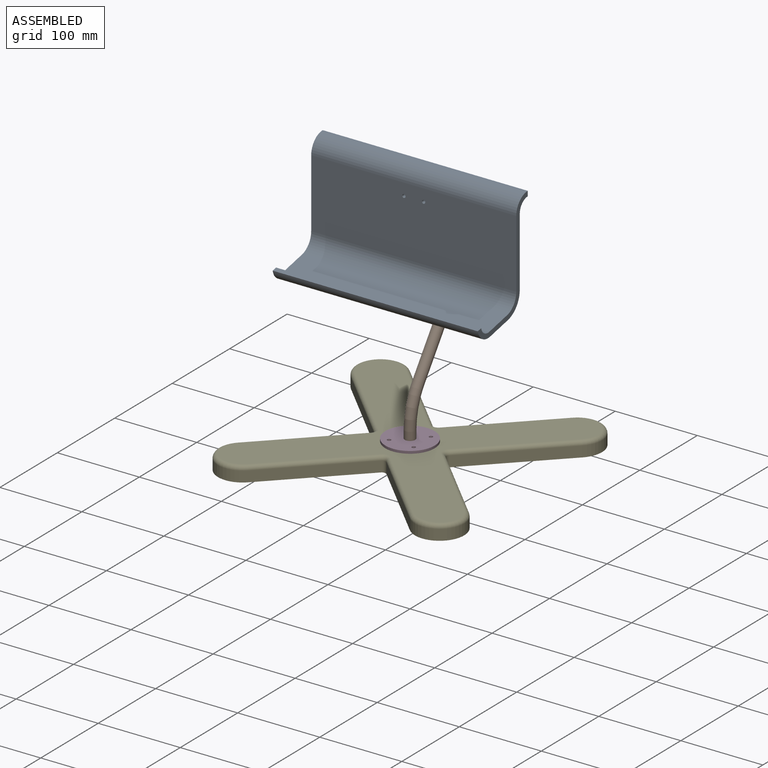
[diagram: assembled view]
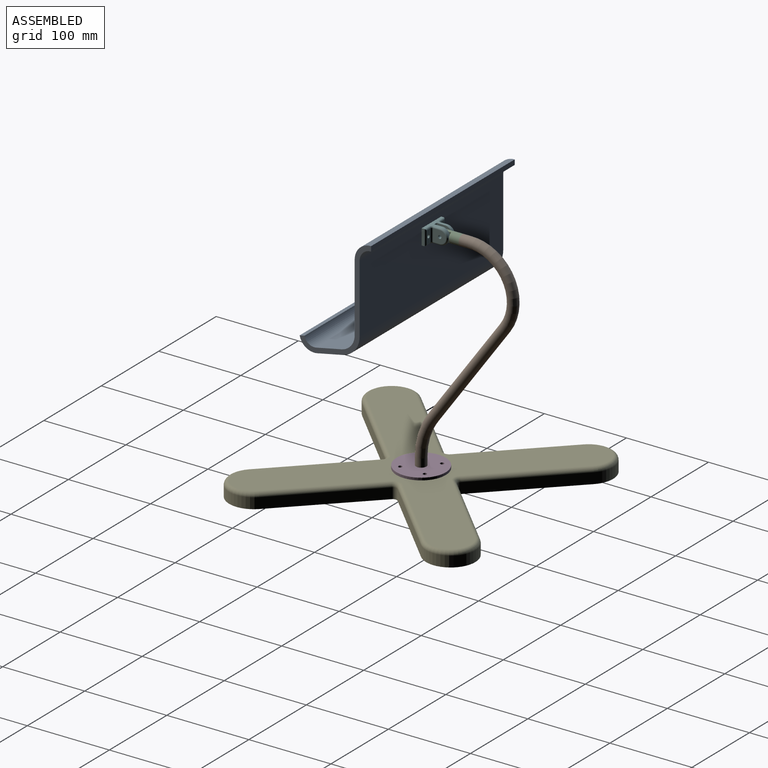
[diagram: assembled view, second angle]
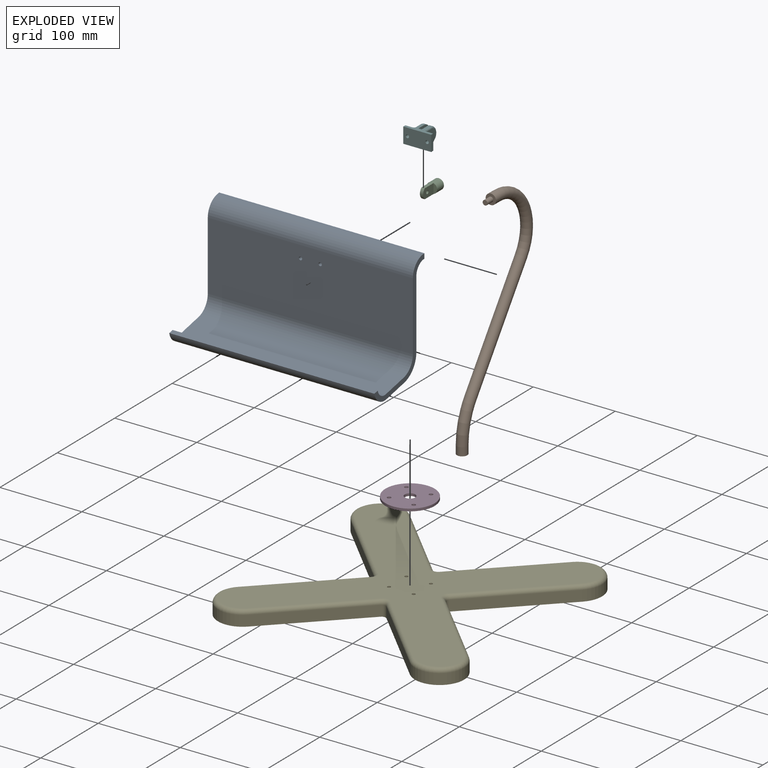
[diagram: exploded view]
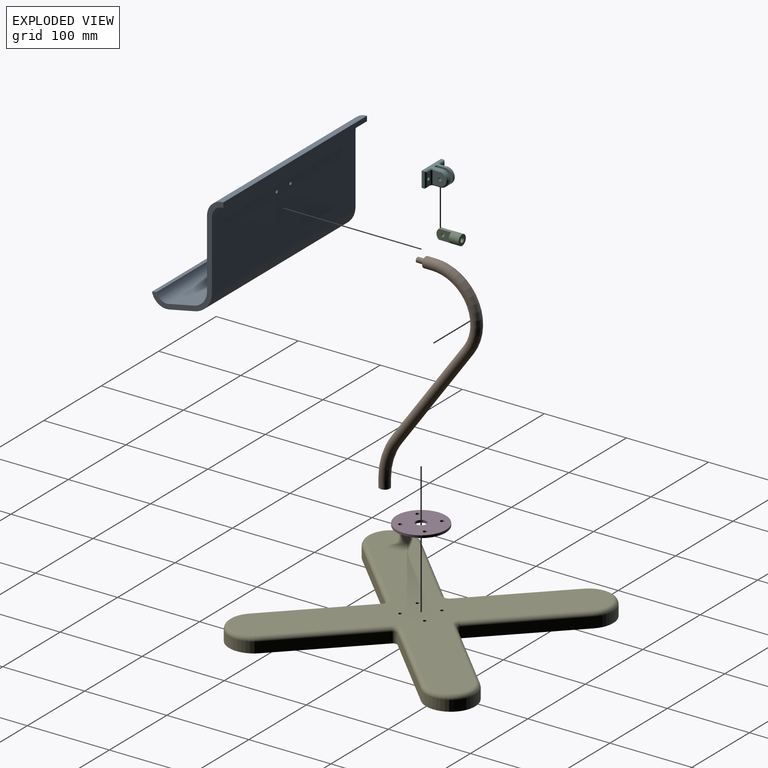
[diagram: exploded view, second angle]
ASSEMBLY  parts=6 mates=5
PART A: 16 faces, bbox 250x109.8x119.9 mm
  f0: plane 250x5.88mm, normal (0,0.98,-0.2), area 1500mm2, adj f1,f11,f12,f13
  f1: cylinder r=20mm len=250mm, axis (1,0,0), area 7854mm2, adj f0,f2,f12,f13
  f2: plane 250x81.98mm, normal (0,-0.98,0.2), area 20899.7mm2, adj f1,f3,f12,f13,f14,f15
  f3: cylinder r=20mm len=250mm, axis (1,0,0), area 6838.5mm2, adj f2,f4,f12,f13
  f4: plane 250x31.7mm, normal (0,0,1), area 7924.8mm2, adj f3,f5,f12,f13
  f5: cylinder r=12mm len=250mm, axis (1,0,0), area 4712.4mm2, adj f4,f6,f12,f13
  f6: plane 250x6mm, normal (0,0,1), area 1500mm2, adj f5,f7,f12,f13
  f7: cylinder r=18mm len=250mm, axis (1,0,0), area 7068.6mm2, adj f6,f8,f12,f13
  f8: plane 250x31.7mm, normal (0,0,-1), area 7924.8mm2, adj f7,f9,f12,f13
  f9: cylinder r=26mm len=250mm, axis (1,0,0), area 8890mm2, adj f8,f10,f12,f13
  f10: plane 250x81.98mm, normal (0,0.98,-0.2), area 20899.7mm2, adj f9,f11,f12,f13,f14,f15
  f11: cylinder r=14mm len=250mm, axis (1,0,0), area 5497.8mm2, adj f0,f10,f12,f13
  f12: plane 119.91x109.79mm, normal (-1,0,0), area 1182.7mm2, adj f0,f1,f2,f3,f4,f5,f6,f7
  f13: plane 119.91x109.79mm, normal (1,0,0), area 1182.7mm2, adj f0,f1,f2,f3,f4,f5,f6,f7
  f14: cylinder r=2mm len=6.68mm, axis (0,0.98,-0.2), area 75.4mm2, adj f2,f10
  f15: cylinder r=2mm len=6.68mm, axis (0,0.98,-0.2), area 75.4mm2, adj f2,f10
PART B: 9 faces, bbox 12.7x136.8x272.3 mm
  f0: cylinder r=6.35mm len=12.7mm, axis (0,-1,0), area 399mm2, adj f5,f7
  f1: plane 12.7x12.7mm, normal (0,0,-1), area 126.7mm2, adj f2
  f2: cylinder r=6.35mm len=12.7mm, axis (0,0,1), area 399mm2, adj f1,f3
  f3: torus R=80mm, axis (-1,0,0), area 1986.1mm2, adj f2,f4
  f4: cylinder r=6.35mm len=129.29mm, axis (0,0.58,0.81), area 5984.7mm2, adj f3,f5
  f5: torus R=52.21mm, axis (1,0,0), area 4567.9mm2, adj f0,f4
  f6: cylinder r=3mm len=10mm, axis (0,-1,0), area 188.5mm2, adj f7,f8
  f7: plane 12.7x12.7mm, normal (0,-1,0), area 98.4mm2, adj f0,f6
  f8: plane 6x6mm, normal (0,-1,0), area 28.3mm2, adj f6
PART C: 10 faces, bbox 12.7x12.7x30 mm
  f0: cylinder r=6.35mm len=26.96mm, axis (0,0,-1), area 598mm2, adj f1,f2,f3,f4,f8,f9
  f1: plane 12.7x12.7mm, normal (0,0,-1), area 98.4mm2, adj f0,f6
  f2: plane 18x12.05mm, normal (-1,0,0), area 193.4mm2, adj f0,f4,f5,f8
  f3: plane 18x12.05mm, normal (1,0,0), area 193.4mm2, adj f0,f4,f5,f9
  f4: cylinder r=7.5mm len=12.7mm, axis (1,0,0), area 59mm2, adj f0,f2,f3
  f5: cylinder r=2mm len=4mm, axis (1,0,0), area 50.3mm2, adj f2,f3
  f6: cylinder r=3mm len=10mm, axis (0,0,-1), area 188.5mm2, adj f1,f7
  f7: plane 6x6mm, normal (0,0,-1), area 28.3mm2, adj f6
  f8: plane 12.05x4.35mm, normal (0,0,1), area 38.4mm2, adj f0,f2
  f9: plane 12.05x4.35mm, normal (0,0,1), area 38.4mm2, adj f0,f3
PART D: 8 faces, bbox 60x60x3 mm
  f0: cylinder r=30mm len=60mm, axis (0,0,1), area 565.5mm2, adj f1,f2
  f1: plane 60x60mm, normal (0,0,-1), area 2637.1mm2, adj f0,f3,f4,f5,f6,f7
  f2: plane 60x60mm, normal (0,0,1), area 2637.1mm2, adj f0,f3,f4,f5,f6,f7
  f3: cylinder r=6.35mm len=12.7mm, axis (0,0,1), area 119.7mm2, adj f1,f2
  f4: cylinder r=2.25mm len=4.5mm, axis (0,0,1), area 42.4mm2, adj f1,f2
  f5: cylinder r=2.25mm len=4.5mm, axis (0,0,1), area 42.4mm2, adj f1,f2
  f6: cylinder r=2.25mm len=4.5mm, axis (0,0,1), area 42.4mm2, adj f1,f2
  f7: cylinder r=2.25mm len=4.5mm, axis (0,0,1), area 42.4mm2, adj f1,f2
PART E: 42 faces, bbox 304.9x304.9x18 mm
  f0: cylinder r=5mm len=13mm, axis (0,0,1), area 102.1mm2, adj f1,f15,f16,f19
  f1: plane 95.25x95.25mm, normal (-0.71,0.71,0), area 1751.2mm2, adj f0,f2,f16,f18
  f2: cylinder r=30mm len=51.21mm, axis (0,0,1), area 1225.2mm2, adj f1,f3,f16,f20
  f3: plane 95.25x95.25mm, normal (0.71,-0.71,0), area 1751.2mm2, adj f2,f4,f16,f22
  f4: cylinder r=5mm len=13mm, axis (0,0,1), area 102.1mm2, adj f3,f5,f16,f24
  f5: plane 95.25x95.25mm, normal (-0.71,-0.71,0), area 1751.2mm2, adj f4,f6,f16,f26
  f6: cylinder r=30mm len=51.21mm, axis (0,0,1), area 1225.2mm2, adj f5,f7,f16,f28
  f7: plane 95.25x95.25mm, normal (0.71,0.71,0), area 1751.2mm2, adj f6,f8,f16,f30
  f8: cylinder r=5mm len=13mm, axis (0,0,1), area 102.1mm2, adj f7,f9,f16,f32
  f9: plane 95.25x95.25mm, normal (0.71,-0.71,0), area 1751.2mm2, adj f8,f10,f16,f33
  f10: cylinder r=30mm len=51.21mm, axis (0,0,1), area 1225.2mm2, adj f9,f11,f16,f31
  f11: plane 95.25x95.25mm, normal (-0.71,0.71,0), area 1751.2mm2, adj f10,f12,f16,f29
  f12: cylinder r=5mm len=13mm, axis (0,0,1), area 102.1mm2, adj f11,f13,f16,f27
  f13: plane 95.25x95.25mm, normal (0.71,0.71,0), area 1751.2mm2, adj f12,f14,f16,f25
  f14: cylinder r=30mm len=51.21mm, axis (0,0,1), area 1225.2mm2, adj f13,f15,f16,f23
  f15: plane 95.25x95.25mm, normal (-0.71,-0.71,0), area 1751.2mm2, adj f0,f14,f16,f21
  f16: plane 300x300mm, normal (0,0,-1), area 42805.7mm2, adj f0,f1,f2,f3,f4,f5,f6,f7
  f17: plane 290x290mm, normal (0,0,1), area 35403.7mm2, adj f18,f19,f20,f21,f22,f23,f24,f25
  f18: cylinder r=5mm len=98.79mm, axis (-0.71,-0.71,0), area 1058mm2, adj f1,f17,f19,f20
  f19: torus R=10mm, axis (0,0,1), area 84.1mm2, adj f0,f17,f18,f21
  f20: torus R=25mm, axis (0,0,1), area 695.4mm2, adj f2,f17,f18,f22
  f21: cylinder r=5mm len=98.79mm, axis (0.71,-0.71,0), area 1058mm2, adj f15,f17,f19,f23
  f22: cylinder r=5mm len=98.79mm, axis (0.71,0.71,0), area 1058mm2, adj f3,f17,f20,f24
  f23: torus R=25mm, axis (0,0,1), area 695.4mm2, adj f14,f17,f21,f25
  f24: torus R=10mm, axis (0,0,1), area 84.1mm2, adj f4,f17,f22,f26
  f25: cylinder r=5mm len=98.79mm, axis (-0.71,0.71,0), area 1058mm2, adj f13,f17,f23,f27
  f26: cylinder r=5mm len=98.79mm, axis (0.71,-0.71,0), area 1058mm2, adj f5,f17,f24,f28
  f27: torus R=10mm, axis (0,0,1), area 84.1mm2, adj f12,f17,f25,f29
  f28: torus R=25mm, axis (0,0,1), area 695.4mm2, adj f6,f17,f26,f30
  f29: cylinder r=5mm len=98.79mm, axis (-0.71,-0.71,0), area 1058mm2, adj f11,f17,f27,f31
  f30: cylinder r=5mm len=98.79mm, axis (-0.71,0.71,0), area 1058mm2, adj f7,f17,f28,f32
  f31: torus R=25mm, axis (0,0,1), area 695.4mm2, adj f10,f17,f29,f33
  f32: torus R=10mm, axis (0,0,1), area 84.1mm2, adj f8,f17,f30,f33
  f33: cylinder r=5mm len=98.79mm, axis (0.71,0.71,0), area 1058mm2, adj f9,f17,f31,f32
  f34: cone r=0mm half-angle=59deg, axis (0,0,1), area 14.7mm2, adj f35
  f35: cylinder r=2mm len=5mm, axis (0,0,1), area 62.8mm2, adj f17,f34
  f36: cone r=0mm half-angle=59deg, axis (0,0,1), area 14.7mm2, adj f37
  f37: cylinder r=2mm len=5mm, axis (0,0,1), area 62.8mm2, adj f17,f36
  f38: cone r=0mm half-angle=59deg, axis (0,0,1), area 14.7mm2, adj f39
  f39: cylinder r=2mm len=5mm, axis (0,0,1), area 62.8mm2, adj f17,f38
  f40: cone r=0mm half-angle=59deg, axis (0,0,1), area 14.7mm2, adj f41
  f41: cylinder r=2mm len=5mm, axis (0,0,1), area 62.8mm2, adj f17,f40
PART F: 36 faces, bbox 34x20.6x25.3 mm
  f0: plane 19.5x19mm, normal (1,0,0), area 319.2mm2, adj f1,f2,f3,f4,f7
  f1: plane 34x15mm, normal (0,1,0), area 188.9mm2, adj f0,f2,f5,f7,f9,f11,f12,f16
  f2: cylinder r=9.5mm len=19mm, axis (-1,0,0), area 89.5mm2, adj f0,f1,f3,f35
  f3: plane 34x15mm, normal (0,-1,0), area 188.9mm2, adj f0,f2,f5,f7,f9,f11,f12,f16
  f4: cylinder r=2mm len=5mm, axis (-1,0,0), area 62.8mm2, adj f0,f6
  f5: plane 34x19mm, normal (0,0,-1), area 620.9mm2, adj f1,f3,f9,f10,f16,f17
  f6: plane 15.5x15mm, normal (-1,0,0), area 195.8mm2, adj f4,f30,f33,f34,f35
  f7: plane 19x4mm, normal (0,0,1), area 76mm2, adj f0,f1,f3,f11
  f8: plane 15x6mm, normal (0,0,1), area 77.4mm2, adj f10,f27,f28,f29,f30
  f9: plane 19x3mm, normal (-1,0,0), area 57mm2, adj f1,f3,f5,f27
  f10: cylinder r=2mm len=5mm, axis (0,0,1), area 62.8mm2, adj f5,f8
  f11: plane 19.5x19mm, normal (-1,0,0), area 319.2mm2, adj f1,f3,f7,f12,f13
  f12: cylinder r=9.5mm len=19mm, axis (1,0,0), area 89.5mm2, adj f1,f3,f11,f20
  f13: cylinder r=2mm len=5mm, axis (1,0,0), area 62.8mm2, adj f11,f14
  f14: plane 15.5x15mm, normal (1,0,0), area 195.8mm2, adj f13,f18,f20,f22,f23
  f15: plane 15x6mm, normal (0,0,1), area 77.4mm2, adj f17,f21,f22,f24,f26
  f16: plane 19x3mm, normal (1,0,0), area 57mm2, adj f1,f3,f5,f24
  f17: cylinder r=2mm len=5mm, axis (0,0,1), area 62.8mm2, adj f5,f15
  f18: cylinder r=2mm len=8mm, axis (0,0,-1), area 25.1mm2, adj f3,f14,f19,f20
  f19: torus R=4mm, axis (0,1,0), area 13.5mm2, adj f3,f18,f21,f22
  f20: torus R=7.5mm, axis (-1,0,0), area 86.6mm2, adj f12,f14,f18,f23
  f21: cylinder r=2mm len=8mm, axis (1,0,0), area 22.8mm2, adj f3,f15,f19,f24
  f22: cylinder r=2mm len=15mm, axis (0,-1,0), area 47.1mm2, adj f14,f15,f19,f25
  f23: cylinder r=2mm len=8mm, axis (0,0,1), area 25.1mm2, adj f1,f14,f20,f25
  f24: cylinder r=2mm len=19mm, axis (0,-1,0), area 55.1mm2, adj f15,f16,f21,f26
  f25: torus R=4mm, axis (0,-1,0), area 13.5mm2, adj f1,f22,f23,f26
  f26: cylinder r=2mm len=8mm, axis (1,0,0), area 22.8mm2, adj f1,f15,f24,f25
  f27: cylinder r=2mm len=19mm, axis (0,-1,0), area 55.1mm2, adj f8,f9,f28,f29
  f28: cylinder r=2mm len=8mm, axis (-1,0,0), area 22.8mm2, adj f1,f8,f27,f31
  f29: cylinder r=2mm len=8mm, axis (-1,0,0), area 22.8mm2, adj f3,f8,f27,f32
  f30: cylinder r=2mm len=15mm, axis (0,-1,0), area 47.1mm2, adj f6,f8,f31,f32
  f31: torus R=4mm, axis (0,-1,0), area 13.5mm2, adj f1,f28,f30,f33
  f32: torus R=4mm, axis (0,1,0), area 13.5mm2, adj f3,f29,f30,f34
  f33: cylinder r=2mm len=8mm, axis (0,0,1), area 25.1mm2, adj f1,f6,f31,f35
  f34: cylinder r=2mm len=8mm, axis (0,0,-1), area 25.1mm2, adj f3,f6,f32,f35
  f35: torus R=7.5mm, axis (1,0,0), area 86.6mm2, adj f2,f6,f33,f34
PLACE A rot(axis=(1,0,0),11.6deg) t=(0,-52.27,166.83)mm
PLACE B t=(0,0,3)mm
PLACE C rot(axis=(1,0,0),90deg) t=(0,50,264.15)mm
PLACE D t=(0,0,3)mm
PLACE E at identity
PLACE F rot(axis=(-1,0,0),90deg) t=(-7,27.5,264.15)mm
MATE cylindrical A.f15 <-> F.f17  axis (0,1,0) through (12,12.5,264.15)mm
MATE cylindrical C.f4 <-> F.f2  axis (1,0,0) through (2,27.5,264.15)mm
MATE cylindrical B.f6 <-> C.f6  axis (0,-1,0) through (0,50,264.15)mm
MATE cylindrical D.f0 <-> B.f2  axis (0,0,1) through (0,0,3)mm
MATE cylindrical D.f6 <-> E.f40  axis (0,0,-1) through (15,-15,0)mm
